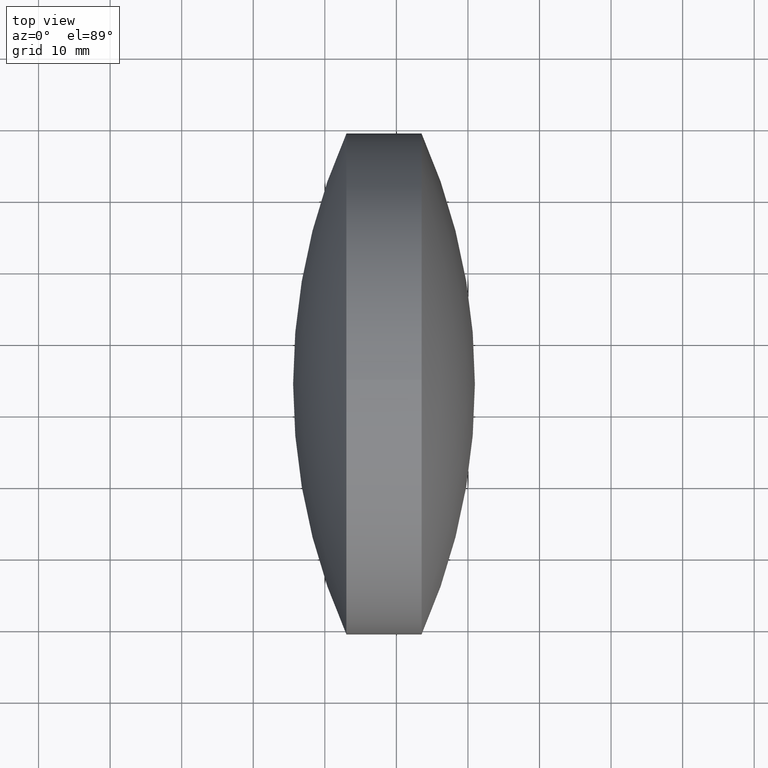
[diagram: clean part render]
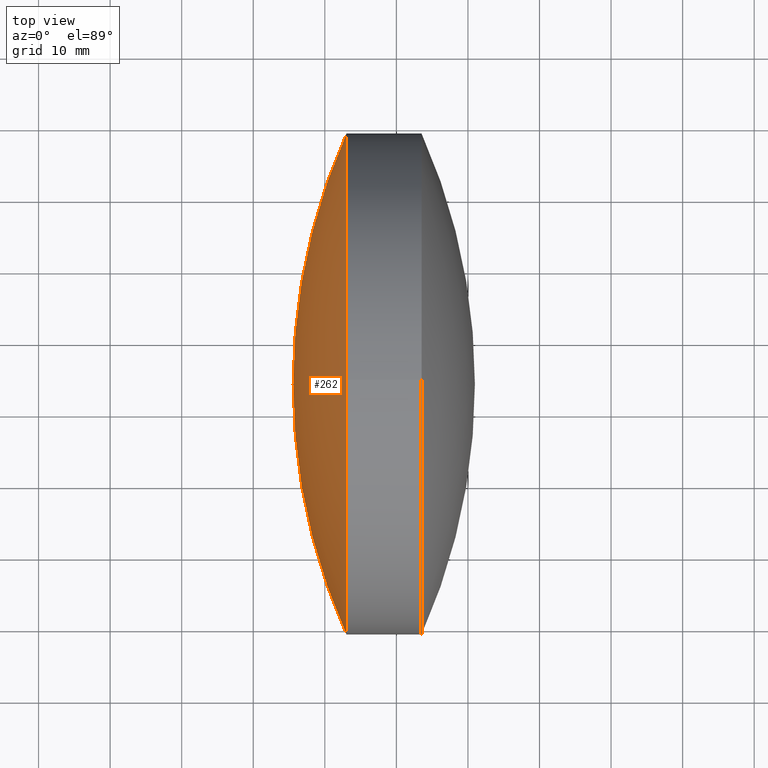
[diagram: same view with one face highlighted and labeled with its STEP entity id]
A machine part, top view. The second image highlights one B-rep face of the part: STEP entity #262.
In plain terms, the highlighted spherical surface has radius 85.9273 mm.
Its self-contained STEP definition (entity closure, byte-faithful):
#5 = VERTEX_POINT ( 'NONE', #218 ) ;
#16 = VERTEX_POINT ( 'NONE', #143 ) ;
#26 = CIRCLE ( 'NONE', #265, 35.00000000000000000 ) ;
#27 = EDGE_CURVE ( 'NONE', #16, #85, #194, .T. ) ;
#42 = DIRECTION ( 'NONE',  ( 0.0000000000000000000, 1.000000000000000000, 1.224646799147353000E-016 ) ) ;
#48 = AXIS2_PLACEMENT_3D ( 'NONE', #276, #66, #122 ) ;
#61 = ORIENTED_EDGE ( 'NONE', *, *, #307, .T. ) ;
#63 = CARTESIAN_POINT ( 'NONE',  ( 233.0206127648180000, 133.9814138434226200, 0.0000000000000000000 ) ) ;
#66 = DIRECTION ( 'NONE',  ( -0.0000000000000000000, 0.0000000000000000000, -1.000000000000000000 ) ) ;
#84 = SPHERICAL_SURFACE ( 'NONE', #48, 85.92725649641434400 ) ;
#85 = VERTEX_POINT ( 'NONE', #322 ) ;
#90 = DIRECTION ( 'NONE',  ( 0.0000000000000000000, 1.224646799147353200E-016, -1.000000000000000000 ) ) ;
#113 = ORIENTED_EDGE ( 'NONE', *, *, #27, .T. ) ;
#122 = DIRECTION ( 'NONE',  ( 0.0000000000000000000, 1.000000000000000000, 0.0000000000000000000 ) ) ;
#127 = AXIS2_PLACEMENT_3D ( 'NONE', #251, #90, #42 ) ;
#143 = CARTESIAN_POINT ( 'NONE',  ( 233.0206127648180000, 168.9814138434226200, 0.0000000000000000000 ) ) ;
#144 = DIRECTION ( 'NONE',  ( -0.0000000000000000000, 0.0000000000000000000, 1.000000000000000000 ) ) ;
#145 = DIRECTION ( 'NONE',  ( -1.000000000000000000, -0.0000000000000000000, -0.0000000000000000000 ) ) ;
#161 = ORIENTED_EDGE ( 'NONE', *, *, #188, .T. ) ;
#179 = DIRECTION ( 'NONE',  ( -1.000000000000000000, -0.0000000000000000000, -0.0000000000000000000 ) ) ;
#188 = EDGE_CURVE ( 'NONE', #5, #236, #26, .T. ) ;
#194 = CIRCLE ( 'NONE', #224, 85.92725649641435800 ) ;
#216 = ORIENTED_EDGE ( 'NONE', *, *, #292, .F. ) ;
#218 = CARTESIAN_POINT ( 'NONE',  ( 233.0206127648180000, 98.98141384342260100, -4.286263797015736500E-015 ) ) ;
#224 = AXIS2_PLACEMENT_3D ( 'NONE', #246, #144, #270 ) ;
#236 = VERTEX_POINT ( 'NONE', #330 ) ;
#246 = CARTESIAN_POINT ( 'NONE',  ( 311.4966817858933700, 133.9814138434226200, 0.0000000000000000000 ) ) ;
#250 = DIRECTION ( 'NONE',  ( 0.0000000000000000000, 0.0000000000000000000, 1.000000000000000000 ) ) ;
#251 = CARTESIAN_POINT ( 'NONE',  ( 311.4966817858933700, 133.9814138434226200, 0.0000000000000000000 ) ) ;
#254 = DIRECTION ( 'NONE',  ( 0.0000000000000000000, 0.0000000000000000000, 1.000000000000000000 ) ) ;
#262 = ADVANCED_FACE ( 'NONE', ( #327 ), #84, .T. ) ;
#265 = AXIS2_PLACEMENT_3D ( 'NONE', #63, #145, #250 ) ;
#270 = DIRECTION ( 'NONE',  ( 1.000000000000000000, 0.0000000000000000000, 0.0000000000000000000 ) ) ;
#276 = CARTESIAN_POINT ( 'NONE',  ( 311.4966817858933700, 133.9814138434226200, 0.0000000000000000000 ) ) ;
#278 = AXIS2_PLACEMENT_3D ( 'NONE', #328, #179, #254 ) ;
#281 = CIRCLE ( 'NONE', #127, 85.92725649641435800 ) ;
#290 = EDGE_LOOP ( 'NONE', ( #216, #161, #61, #113 ) ) ;
#292 = EDGE_CURVE ( 'NONE', #5, #85, #281, .T. ) ;
#302 = CIRCLE ( 'NONE', #278, 35.00000000000000000 ) ;
#307 = EDGE_CURVE ( 'NONE', #236, #16, #302, .T. ) ;
#322 = CARTESIAN_POINT ( 'NONE',  ( 225.5694252894790000, 133.9814138434226200, 0.0000000000000000000 ) ) ;
#327 = FACE_OUTER_BOUND ( 'NONE', #290, .T. ) ;
#328 = CARTESIAN_POINT ( 'NONE',  ( 233.0206127648180000, 133.9814138434226200, 0.0000000000000000000 ) ) ;
#330 = CARTESIAN_POINT ( 'NONE',  ( 233.0206127648180000, 133.9814138434226200, 35.00000000000000000 ) ) ;